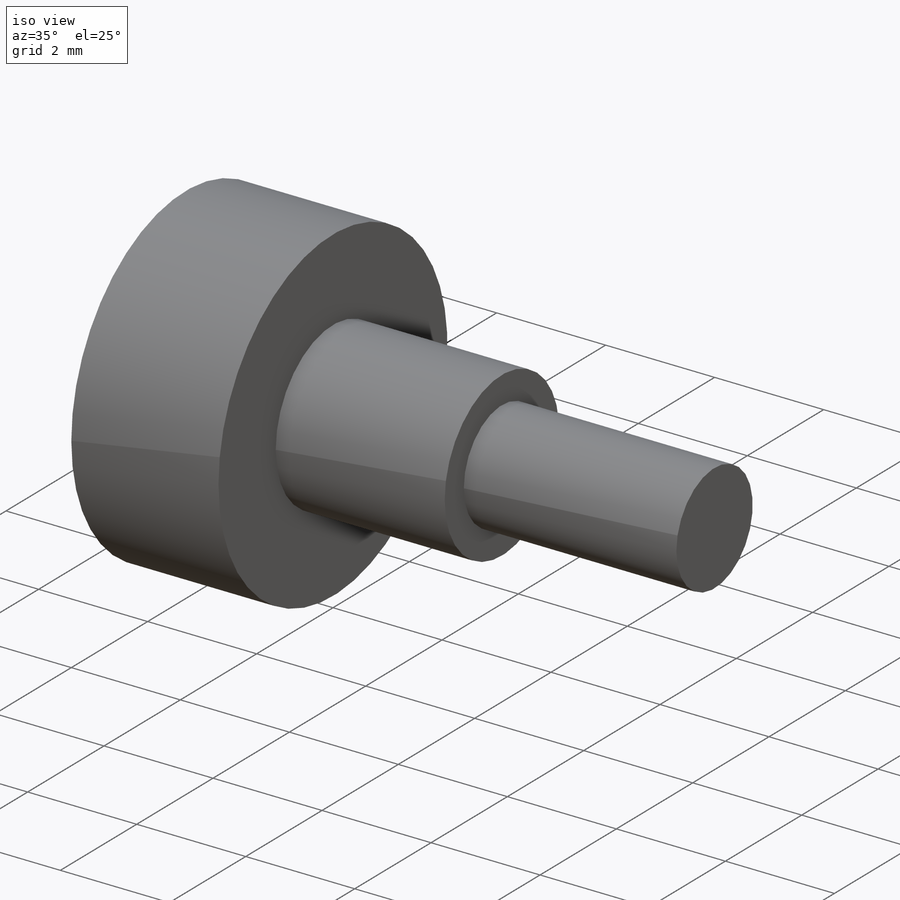
[diagram: iso view]
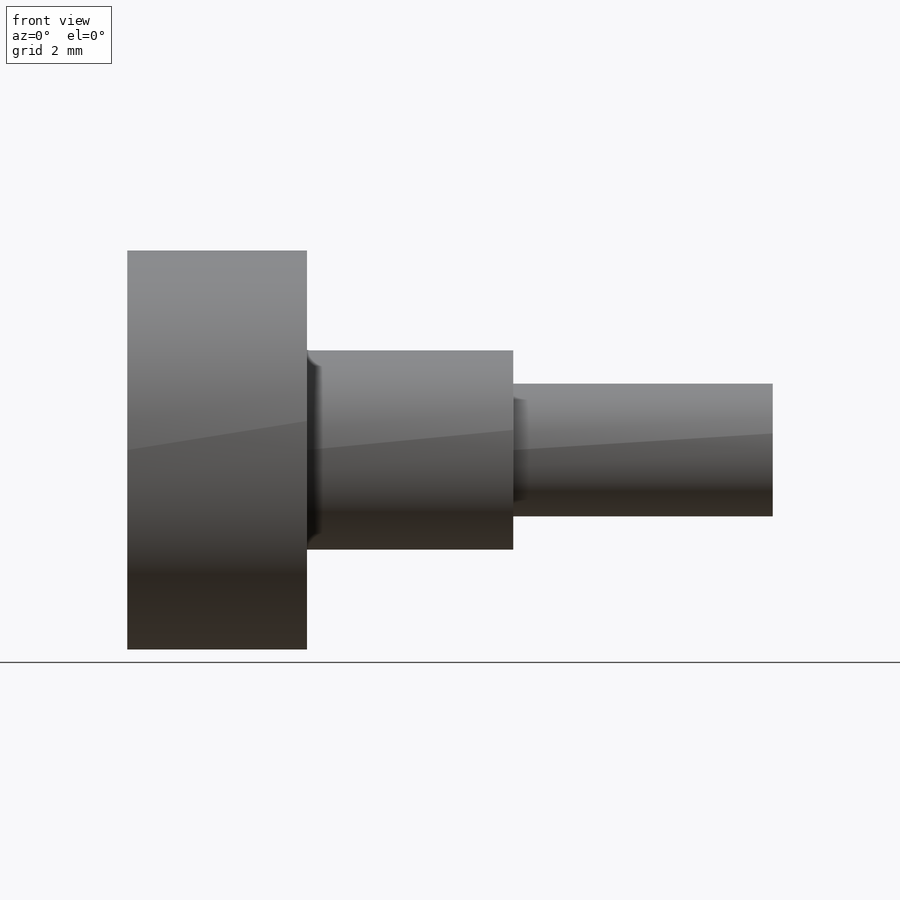
[diagram: front view]
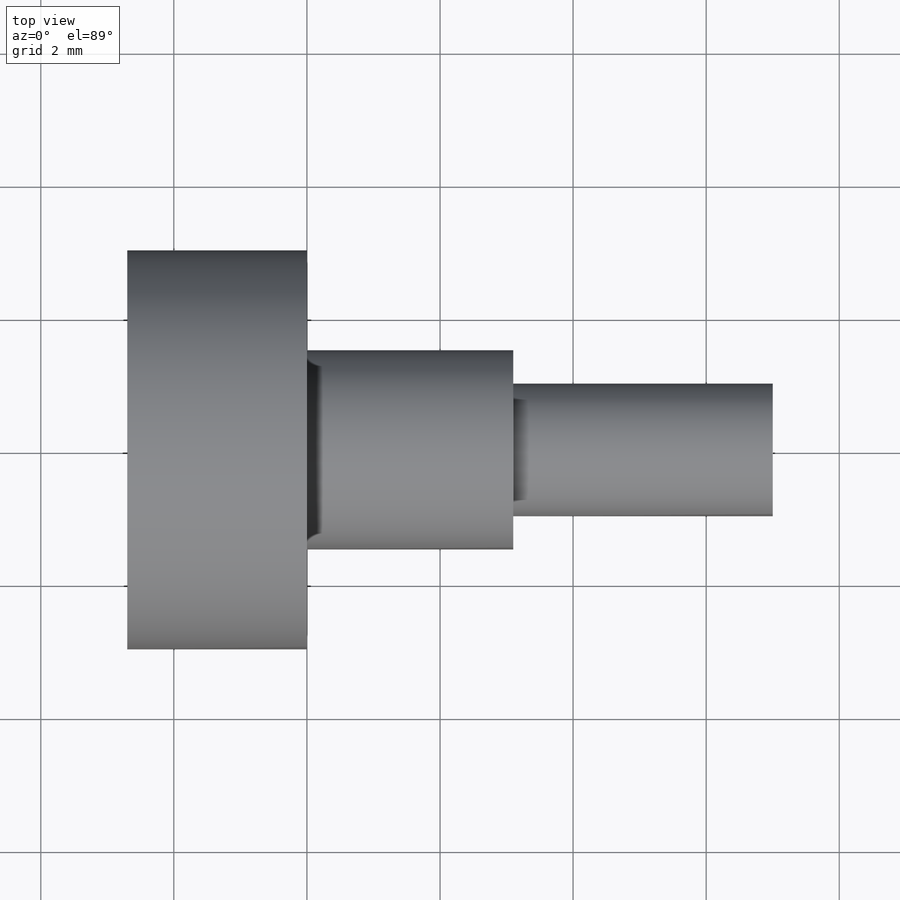
[diagram: top view]
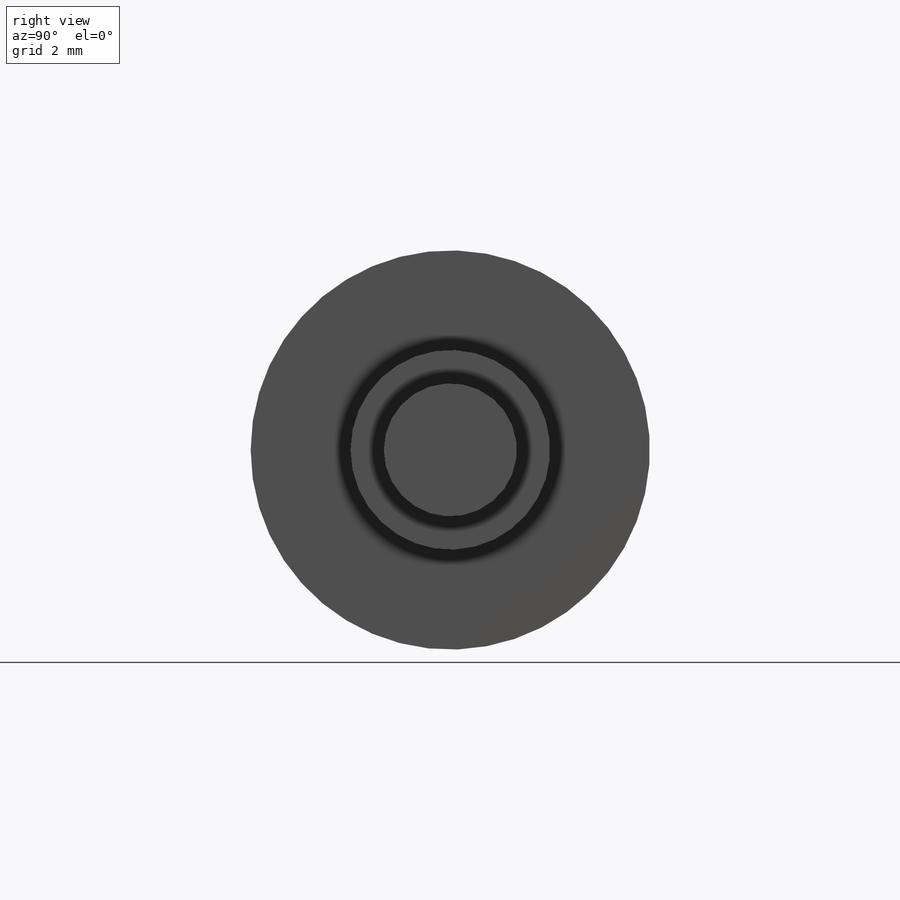
[diagram: right view]
SOLIDWORKS PART (.sldprt)
format: sldprt  version: not decoded by parser v0  size: 196,608 bytes
history: native  units: mm
features: sketch x5, plane x3, cut_revolve x3, material x1, revolve x1, cut_extrude x1 (+8 scaffold rows collapsed)
feature tree (22):
  scaffold x8  (default folders/planes/origin — collapsed)
  material  "Material <not specified>"
  plane  "Ebene vorne"
  plane  "Ebene oben"
  plane  "Ebene rechts"
  sketch  "Skizze1"  dims[D1=7.2mm D2=4.0mm D3=4.0mm D4=7.0mm]
  revolve  "Rotation1"  Angle=360deg
  sketch  "Skizze2"  dims[D1=3.0mm]
  cut_extrude  "Schnitt-Linear austragen1"  Depth=2.7mm
  sketch  "Skizze3"  dims[D1=3.0mm D2=~1.368324mm]
  cut_revolve  "Schnitt-Rotation1"  Angle=360deg
  sketch  "Skizze4"  dims[D1=2.0mm D2=3.1mm]
  cut_revolve  "Schnitt-Rotation2"  Angle=360deg
  sketch  "Skizze6"  dims[D1=6.0mm D2=2.7mm]
  cut_revolve  "Schnitt-Rotation3"  Angle=360deg
decode coverage: 10 of 10 modeling features carry decoded parameters
note: ~ marks probable driven/reference dimensions
note: suppression state not decoded; provenance and decode notes live in map.json
